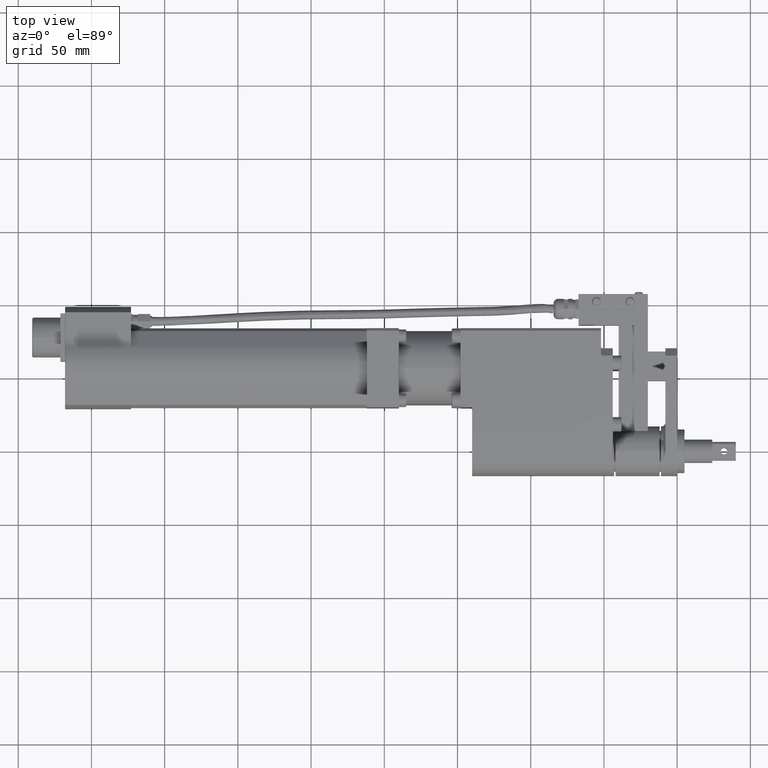
[diagram: clean part render]
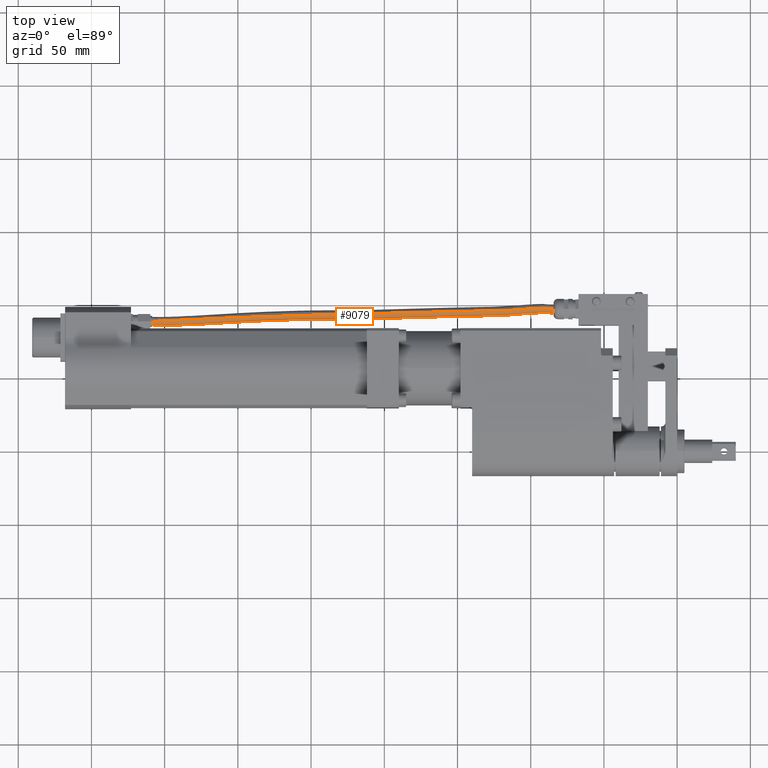
[diagram: same view with one face highlighted and labeled with its STEP entity id]
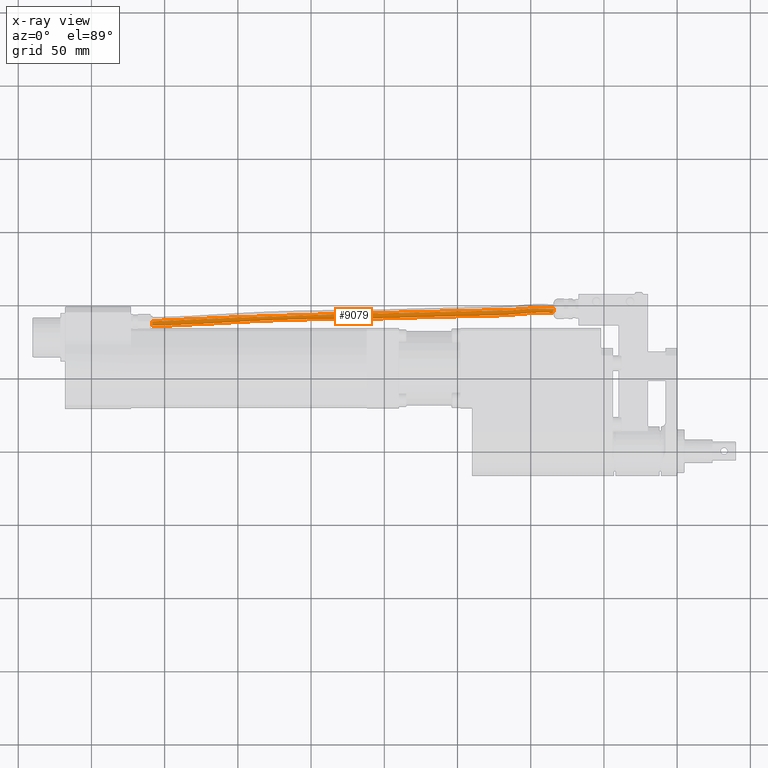
[diagram: x-ray of the same camera — body ghosted, the highlighted face saturated]
A machine part, top view. The second image highlights one B-rep face of the part: STEP entity #9079.
The next image is the same camera in x-ray: the body ghosted, the highlighted face saturated — about 0% of this face is hidden behind the body in this view.
In plain terms, the highlighted face is a freeform B-spline surface patch.
Its self-contained STEP definition (entity closure, byte-faithful):
#32 = CARTESIAN_POINT ( 'NONE',  ( -337.6372789821556900, 88.88968227986295300, -2.999999999999996400 ) ) ;
#170 = CARTESIAN_POINT ( 'NONE',  ( -312.1120021938616000, 90.75187374683132200, -2.999999999999996000 ) ) ;
#180 = EDGE_CURVE ( 'NONE', #5547, #9154, #2619, .T. ) ;
#201 = CARTESIAN_POINT ( 'NONE',  ( -94.54529776548345400, 98.30544597537202400, -2.999999999999996400 ) ) ;
#443 = DIRECTION ( 'NONE',  ( -0.1169190718949042900, -0.9931414454282099200, 0.0000000000000000000 ) ) ;
#636 = CARTESIAN_POINT ( 'NONE',  ( -279.1714916684698600, 92.37723864567809100, -2.999999999999996400 ) ) ;
#669 = CARTESIAN_POINT ( 'NONE',  ( -279.3861324880739400, 98.37351166050284200, -2.999999999999996000 ) ) ;
#702 = CARTESIAN_POINT ( 'NONE',  ( -279.3861324880739400, 98.37351166050284200, 3.000000000000003100 ) ) ;
#743 = CARTESIAN_POINT ( 'NONE',  ( -279.1714916684698600, 92.37723864567809100, 3.000000000000005300 ) ) ;
#782 = CARTESIAN_POINT ( 'NONE',  ( -278.9568508488657700, 86.38096563085329600, 3.000000000000005800 ) ) ;
#811 = CARTESIAN_POINT ( 'NONE',  ( -278.9568508488657700, 86.38096563085329600, -2.999999999999996000 ) ) ;
#855 = CARTESIAN_POINT ( 'NONE',  ( -279.1714916684698600, 92.37723864567809100, -2.999999999999996400 ) ) ;
#1370 = CARTESIAN_POINT ( 'NONE',  ( -312.1120021938616000, 90.75187374683132200, 3.000000000000005300 ) ) ;
#1473 = CARTESIAN_POINT ( 'NONE',  ( -224.9732553969826900, 93.25762852176600900, -2.999999999999996000 ) ) ;
#1509 = CARTESIAN_POINT ( 'NONE',  ( -225.0780242474189400, 99.25756351069597400, -2.999999999999995600 ) ) ;
#1564 = CARTESIAN_POINT ( 'NONE',  ( -225.0780242474189400, 99.25756351069597400, 3.000000000000003600 ) ) ;
#1599 = CARTESIAN_POINT ( 'NONE',  ( -224.9732553969826900, 93.25762852176600900, 3.000000000000004400 ) ) ;
#1632 = CARTESIAN_POINT ( 'NONE',  ( -224.8684865465464800, 87.25769353283607200, 3.000000000000005800 ) ) ;
#1676 = CARTESIAN_POINT ( 'NONE',  ( -224.8684865465464800, 87.25769353283607200, -2.999999999999995600 ) ) ;
#1714 = CARTESIAN_POINT ( 'NONE',  ( -224.9732553969826900, 93.25762852176600900, -2.999999999999996000 ) ) ;
#1862 = CARTESIAN_POINT ( 'NONE',  ( -358.3999999999999200, 88.71000000000000800, -2.999999999999996400 ) ) ;
#2129 = B_SPLINE_CURVE_WITH_KNOTS ( 'NONE', 3,
 ( #9828, #3885, #1370, #7320, #2217, #8155, #3060, #9019, #3936, #9870, #4777, #10720, #5635 ),
 .UNSPECIFIED., .F., .F.,
 ( 4, 1, 1, 1, 1, 1, 1, 1, 1, 1, 4 ),
 ( 0.0000000000000000000, 0.2270289307860099400, 0.2799999999999998000, 0.3608317495046968700, 0.5401302877822145000, 0.5599999999999999400, 0.7066666666666664400, 0.7812109671648893600, 0.8533333333333313900, 0.8895219977850782300, 1.000000000000000000 ),
 .UNSPECIFIED. ) ;
#2217 = CARTESIAN_POINT ( 'NONE',  ( -250.5716334594487800, 93.36711240785028600, 3.000000000000004900 ) ) ;
#2331 = CARTESIAN_POINT ( 'NONE',  ( -171.3620717769674700, 94.67965459027406900, -2.999999999999996900 ) ) ;
#2371 = CARTESIAN_POINT ( 'NONE',  ( -171.4316261424737600, 100.6763136923954100, -2.999999999999996000 ) ) ;
#2399 = CARTESIAN_POINT ( 'NONE',  ( -171.4316261424737600, 100.6763136923954100, 3.000000000000004000 ) ) ;
#2434 = CARTESIAN_POINT ( 'NONE',  ( -171.3620717769674700, 94.67965459027406900, 3.000000000000005300 ) ) ;
#2482 = CARTESIAN_POINT ( 'NONE',  ( -171.2925174114610100, 88.68299548815268500, 3.000000000000006700 ) ) ;
#2512 = CARTESIAN_POINT ( 'NONE',  ( -171.2925174114610100, 88.68299548815268500, -2.999999999999996000 ) ) ;
#2548 = CARTESIAN_POINT ( 'NONE',  ( -171.3620717769674700, 94.67965459027406900, -2.999999999999996900 ) ) ;
#2619 = B_SPLINE_CURVE_WITH_KNOTS ( 'NONE', 3,
 ( #1862, #6952, #170, #7799, #2693, #8652, #3562, #9510, #4419, #10370, #5263, #201, #6133 ),
 .UNSPECIFIED., .F., .F.,
 ( 4, 1, 1, 1, 1, 1, 1, 1, 1, 1, 4 ),
 ( 0.0000000000000000000, 0.2270289307860099400, 0.2799999999999998000, 0.3608317495046968700, 0.5401302877822145000, 0.5599999999999999400, 0.7066666666666664400, 0.7812109671648893600, 0.8533333333333313900, 0.8895219977850782300, 1.000000000000000000 ),
 .UNSPECIFIED. ) ;
#2656 = VERTEX_POINT ( 'NONE', #5176 ) ;
#2693 = CARTESIAN_POINT ( 'NONE',  ( -250.5716334594487800, 93.36711240785028600, -2.999999999999995600 ) ) ;
#2766 = DIRECTION ( 'NONE',  ( 1.000000000000000000, 0.0000000000000000000, 0.0000000000000000000 ) ) ;
#2873 = CARTESIAN_POINT ( 'NONE',  ( -358.3999999999999200, 88.71000000000000800, -2.999999999999996400 ) ) ;
#3060 = CARTESIAN_POINT ( 'NONE',  ( -193.3776078830578600, 93.87948260659382500, 3.000000000000005300 ) ) ;
#3158 = CARTESIAN_POINT ( 'NONE',  ( -127.8321871888082200, 95.46732863506856900, -2.999999999999997800 ) ) ;
#3198 = CARTESIAN_POINT ( 'NONE',  ( -128.0443054445173300, 101.4681659755125800, -2.999999999999996000 ) ) ;
#3250 = CARTESIAN_POINT ( 'NONE',  ( -128.0443054445173300, 101.4681659755125800, 3.000000000000004000 ) ) ;
#3291 = CARTESIAN_POINT ( 'NONE',  ( -127.8321871888082200, 95.46732863506856900, 3.000000000000007100 ) ) ;
#3323 = CARTESIAN_POINT ( 'NONE',  ( -127.6200689330992000, 89.46649129462446100, 3.000000000000006200 ) ) ;
#3359 = CARTESIAN_POINT ( 'NONE',  ( -127.6200689330992000, 89.46649129462446100, -2.999999999999996000 ) ) ;
#3406 = CARTESIAN_POINT ( 'NONE',  ( -127.8321871888082200, 95.46732863506856900, -2.999999999999997800 ) ) ;
#3562 = CARTESIAN_POINT ( 'NONE',  ( -193.3776078830578600, 93.87948260659382500, -2.999999999999996000 ) ) ;
#3672 = CIRCLE ( 'NONE', #6089, 3.000000000000000900 ) ;
#3885 = CARTESIAN_POINT ( 'NONE',  ( -337.6372789821556900, 88.88968227986295300, 3.000000000000005300 ) ) ;
#3936 = CARTESIAN_POINT ( 'NONE',  ( -144.5565897862414000, 95.35578089621159800, 3.000000000000005800 ) ) ;
#4032 = CARTESIAN_POINT ( 'NONE',  ( -94.54529776548345400, 98.30544597537202400, -2.999999999999996400 ) ) ;
#4083 = CARTESIAN_POINT ( 'NONE',  ( -94.11677713391705400, 104.2767418254009200, -2.999999999999995600 ) ) ;
#4118 = CARTESIAN_POINT ( 'NONE',  ( -94.11677713391705400, 104.2767418254009200, 3.000000000000004400 ) ) ;
#4155 = CARTESIAN_POINT ( 'NONE',  ( -94.54529776548345400, 98.30544597537202400, 3.000000000000004900 ) ) ;
#4195 = CARTESIAN_POINT ( 'NONE',  ( -94.97381839704992500, 92.33415012534317200, 3.000000000000006200 ) ) ;
#4235 = CARTESIAN_POINT ( 'NONE',  ( -94.97381839704992500, 92.33415012534317200, -2.999999999999995600 ) ) ;
#4265 = CARTESIAN_POINT ( 'NONE',  ( -94.54529776548345400, 98.30544597537202400, -2.999999999999996400 ) ) ;
#4419 = CARTESIAN_POINT ( 'NONE',  ( -144.5565897862414000, 95.35578089621159800, -2.999999999999996400 ) ) ;
#4764 = EDGE_CURVE ( 'NONE', #9372, #5547, #3672, .T. ) ;
#4777 = CARTESIAN_POINT ( 'NONE',  ( -107.8649417774172600, 96.42175498983840500, 3.000000000000005800 ) ) ;
#4883 = CARTESIAN_POINT ( 'NONE',  ( -358.3999999999999800, 94.71000000000000800, -2.999999999999996400 ) ) ;
#4920 = CARTESIAN_POINT ( 'NONE',  ( -358.3999999999999800, 94.71000000000000800, 3.000000000000004400 ) ) ;
#4958 = CARTESIAN_POINT ( 'NONE',  ( -358.3999999999999200, 88.71000000000000800, 3.000000000000005300 ) ) ;
#5002 = CARTESIAN_POINT ( 'NONE',  ( -358.3999999999999800, 82.71000000000000800, 3.000000000000006200 ) ) ;
#5037 = CARTESIAN_POINT ( 'NONE',  ( -358.3999999999999800, 82.71000000000000800, -2.999999999999996400 ) ) ;
#5071 = CARTESIAN_POINT ( 'NONE',  ( -358.3999999999999200, 88.71000000000000800, -2.999999999999996400 ) ) ;
#5176 = CARTESIAN_POINT ( 'NONE',  ( -84.40000000000002000, 97.20000000000000300, 3.000000000000005300 ) ) ;
#5255 = CARTESIAN_POINT ( 'NONE',  ( -84.40000000000002000, 97.20000000000000300, -2.999999999999996400 ) ) ;
#5257 = FACE_OUTER_BOUND ( 'NONE', #5832, .T. ) ;
#5263 = CARTESIAN_POINT ( 'NONE',  ( -107.8649417774172600, 96.42175498983840500, -2.999999999999996400 ) ) ;
#5453 = CIRCLE ( 'NONE', #6167, 3.000000000000003600 ) ;
#5517 = DIRECTION ( 'NONE',  ( -0.9931414454282100300, 0.1169190718949045700, -0.0000000000000000000 ) ) ;
#5547 = VERTEX_POINT ( 'NONE', #2873 ) ;
#5635 = CARTESIAN_POINT ( 'NONE',  ( -84.40000000000002000, 97.20000000000000300, 3.000000000000005300 ) ) ;
#5665 = CARTESIAN_POINT ( 'NONE',  ( -358.3999999999999200, 88.71000000000000800, -2.999999999999996400 ) ) ;
#5687 = CARTESIAN_POINT ( 'NONE',  ( -358.3999999999999200, 88.71000000000000800, 3.000000000000005300 ) ) ;
#5698 = CARTESIAN_POINT ( 'NONE',  ( -312.1120021938616000, 90.75187374683132200, -2.999999999999996400 ) ) ;
#5735 = CARTESIAN_POINT ( 'NONE',  ( -312.3003747382754800, 96.74802387275364900, -2.999999999999996400 ) ) ;
#5783 = CARTESIAN_POINT ( 'NONE',  ( -312.3003747382754800, 96.74802387275364900, 3.000000000000004000 ) ) ;
#5822 = CARTESIAN_POINT ( 'NONE',  ( -312.1120021938616000, 90.75187374683132200, 3.000000000000005300 ) ) ;
#5832 = EDGE_LOOP ( 'NONE', ( #10043, #10898, #8484, #6188 ) ) ;
#5854 = CARTESIAN_POINT ( 'NONE',  ( -311.9236296494476100, 84.75572362090896700, 3.000000000000006700 ) ) ;
#5889 = CARTESIAN_POINT ( 'NONE',  ( -311.9236296494476100, 84.75572362090896700, -2.999999999999996400 ) ) ;
#5940 = CARTESIAN_POINT ( 'NONE',  ( -312.1120021938616000, 90.75187374683132200, -2.999999999999996400 ) ) ;
#6089 = AXIS2_PLACEMENT_3D ( 'NONE', #7864, #2766, #8731 ) ;
#6133 = CARTESIAN_POINT ( 'NONE',  ( -84.40000000000002000, 97.20000000000000300, -2.999999999999996400 ) ) ;
#6167 = AXIS2_PLACEMENT_3D ( 'NONE', #10611, #5517, #443 ) ;
#6188 = ORIENTED_EDGE ( 'NONE', *, *, #8344, .T. ) ;
#6568 = CARTESIAN_POINT ( 'NONE',  ( -250.5716334594487800, 93.36711240785028600, -2.999999999999996000 ) ) ;
#6613 = CARTESIAN_POINT ( 'NONE',  ( -250.7539441973737600, 99.36495604594608700, -2.999999999999996000 ) ) ;
#6648 = CARTESIAN_POINT ( 'NONE',  ( -250.7539441973737600, 99.36495604594608700, 3.000000000000003100 ) ) ;
#6681 = CARTESIAN_POINT ( 'NONE',  ( -250.5716334594487800, 93.36711240785028600, 3.000000000000004900 ) ) ;
#6723 = CARTESIAN_POINT ( 'NONE',  ( -250.3893227215238800, 87.36926876975449800, 3.000000000000005800 ) ) ;
#6765 = CARTESIAN_POINT ( 'NONE',  ( -250.3893227215238800, 87.36926876975449800, -2.999999999999996000 ) ) ;
#6799 = CARTESIAN_POINT ( 'NONE',  ( -250.5716334594487800, 93.36711240785028600, -2.999999999999996000 ) ) ;
#6952 = CARTESIAN_POINT ( 'NONE',  ( -337.6372789821556900, 88.88968227986295300, -2.999999999999996400 ) ) ;
#7262 =( BOUNDED_SURFACE ( )  B_SPLINE_SURFACE ( 3, 3, ( 
 ( #5665, #9942, #5698, #636, #6568, #1473, #7420, #2331, #8257, #3158, #9124, #4032, #9979 ),
 ( #4883, #10824, #5735, #669, #6613, #1509, #7457, #2371, #8304, #3198, #9160, #4083, #10015 ),
 ( #4920, #10864, #5783, #702, #6648, #1564, #7495, #2399, #8345, #3250, #9190, #4118, #10068 ),
 ( #4958, #10893, #5822, #743, #6681, #1599, #7537, #2434, #8379, #3291, #9237, #4155, #10101 ),
 ( #5002, #10925, #5854, #782, #6723, #1632, #7573, #2482, #8410, #3323, #9277, #4195, #10132 ),
 ( #5037, #10967, #5889, #811, #6765, #1676, #7606, #2512, #8459, #3359, #9306, #4235, #10177 ),
 ( #5071, #32, #5940, #855, #6799, #1714, #7642, #2548, #8491, #3406, #9343, #4265, #10214 ) ),
 .UNSPECIFIED., .T., .F., .F. ) 
 B_SPLINE_SURFACE_WITH_KNOTS ( ( 4, 3, 4 ),
 ( 4, 1, 1, 1, 1, 1, 1, 1, 1, 1, 4 ),
 ( 0.0000000000000000000, 0.5000000000000000000, 1.000000000000000000 ),
 ( 0.0000000000000000000, 0.2270289307860099400, 0.2799999999999998000, 0.3608317495046968700, 0.5401302877822145000, 0.5599999999999999400, 0.7066666666666664400, 0.7812109671648893600, 0.8533333333333313900, 0.8895219977850782300, 1.000000000000000000 ),
 .UNSPECIFIED. ) 
 GEOMETRIC_REPRESENTATION_ITEM ( )  RATIONAL_B_SPLINE_SURFACE ( (
 ( 1.000000000000000000, 1.000000000000000000, 1.000000000000000200, 1.000000000000000200, 1.000000000000000200, 1.000000000000000200, 1.000000000000000200, 1.000000000000000200, 1.000000000000000000, 0.9999999999999998900, 0.9999999999999997800, 1.000000000000000000, 1.000000000000000000),
 ( 0.3333333333333333700, 0.3333333333333333700, 0.3333333333333334300, 0.3333333333333334800, 0.3333333333333334300, 0.3333333333333333700, 0.3333333333333334300, 0.3333333333333334800, 0.3333333333333333700, 0.3333333333333333100, 0.3333333333333333100, 0.3333333333333333700, 0.3333333333333333700),
 ( 0.3333333333333333700, 0.3333333333333333700, 0.3333333333333334300, 0.3333333333333334800, 0.3333333333333334300, 0.3333333333333333700, 0.3333333333333334300, 0.3333333333333334800, 0.3333333333333333700, 0.3333333333333333100, 0.3333333333333333100, 0.3333333333333333700, 0.3333333333333333700),
 ( 1.000000000000000000, 1.000000000000000000, 1.000000000000000200, 1.000000000000000200, 1.000000000000000200, 1.000000000000000200, 1.000000000000000200, 1.000000000000000200, 1.000000000000000000, 0.9999999999999998900, 0.9999999999999997800, 1.000000000000000000, 1.000000000000000000),
 ( 0.3333333333333333700, 0.3333333333333333700, 0.3333333333333334300, 0.3333333333333334800, 0.3333333333333334300, 0.3333333333333333700, 0.3333333333333334300, 0.3333333333333334800, 0.3333333333333333700, 0.3333333333333333100, 0.3333333333333333100, 0.3333333333333333700, 0.3333333333333333700),
 ( 0.3333333333333333700, 0.3333333333333333700, 0.3333333333333334300, 0.3333333333333334800, 0.3333333333333334300, 0.3333333333333333700, 0.3333333333333334300, 0.3333333333333334800, 0.3333333333333333700, 0.3333333333333333100, 0.3333333333333333100, 0.3333333333333333700, 0.3333333333333333700),
 ( 1.000000000000000000, 1.000000000000000000, 1.000000000000000200, 1.000000000000000200, 1.000000000000000200, 1.000000000000000200, 1.000000000000000200, 1.000000000000000200, 1.000000000000000000, 0.9999999999999998900, 0.9999999999999997800, 1.000000000000000000, 1.000000000000000000) ) ) 
 REPRESENTATION_ITEM ( '' )  SURFACE ( )  );
#7320 = CARTESIAN_POINT ( 'NONE',  ( -279.1714916684699100, 92.37723864567809100, 3.000000000000005300 ) ) ;
#7420 = CARTESIAN_POINT ( 'NONE',  ( -193.3776078830578600, 93.87948260659383900, -2.999999999999996400 ) ) ;
#7457 = CARTESIAN_POINT ( 'NONE',  ( -193.4396412287749200, 99.87875161419921700, -2.999999999999996000 ) ) ;
#7495 = CARTESIAN_POINT ( 'NONE',  ( -193.4396412287749200, 99.87875161419921700, 3.000000000000004000 ) ) ;
#7537 = CARTESIAN_POINT ( 'NONE',  ( -193.3776078830578600, 93.87948260659383900, 3.000000000000005300 ) ) ;
#7573 = CARTESIAN_POINT ( 'NONE',  ( -193.3155745373406900, 87.88021359898846200, 3.000000000000005800 ) ) ;
#7606 = CARTESIAN_POINT ( 'NONE',  ( -193.3155745373406900, 87.88021359898846200, -2.999999999999996000 ) ) ;
#7642 = CARTESIAN_POINT ( 'NONE',  ( -193.3776078830578600, 93.87948260659383900, -2.999999999999996400 ) ) ;
#7799 = CARTESIAN_POINT ( 'NONE',  ( -279.1714916684699100, 92.37723864567809100, -2.999999999999996000 ) ) ;
#7864 = CARTESIAN_POINT ( 'NONE',  ( -358.3999999999999200, 88.71000000000000800, 4.336808689942017700E-015 ) ) ;
#8155 = CARTESIAN_POINT ( 'NONE',  ( -224.9732553969826900, 93.25762852176600900, 3.000000000000004400 ) ) ;
#8257 = CARTESIAN_POINT ( 'NONE',  ( -144.5565897862414000, 95.35578089621159800, -2.999999999999996400 ) ) ;
#8304 = CARTESIAN_POINT ( 'NONE',  ( -144.7862240500072900, 101.3579655580499400, -2.999999999999996900 ) ) ;
#8344 = EDGE_CURVE ( 'NONE', #9154, #2656, #5453, .T. ) ;
#8345 = CARTESIAN_POINT ( 'NONE',  ( -144.7862240500072900, 101.3579655580499400, 3.000000000000004900 ) ) ;
#8379 = CARTESIAN_POINT ( 'NONE',  ( -144.5565897862414000, 95.35578089621159800, 3.000000000000005800 ) ) ;
#8410 = CARTESIAN_POINT ( 'NONE',  ( -144.3269555224755400, 89.35359623437327100, 3.000000000000006200 ) ) ;
#8459 = CARTESIAN_POINT ( 'NONE',  ( -144.3269555224755400, 89.35359623437327100, -2.999999999999996900 ) ) ;
#8484 = ORIENTED_EDGE ( 'NONE', *, *, #180, .T. ) ;
#8491 = CARTESIAN_POINT ( 'NONE',  ( -144.5565897862414000, 95.35578089621159800, -2.999999999999996400 ) ) ;
#8599 = EDGE_CURVE ( 'NONE', #9372, #2656, #2129, .T. ) ;
#8652 = CARTESIAN_POINT ( 'NONE',  ( -224.9732553969826900, 93.25762852176600900, -2.999999999999995600 ) ) ;
#8731 = DIRECTION ( 'NONE',  ( 0.0000000000000000000, 0.0000000000000000000, -1.000000000000000000 ) ) ;
#9019 = CARTESIAN_POINT ( 'NONE',  ( -171.3620717769674700, 94.67965459027405500, 3.000000000000005300 ) ) ;
#9079 = ADVANCED_FACE ( 'NONE', ( #5257 ), #7262, .T. ) ;
#9124 = CARTESIAN_POINT ( 'NONE',  ( -107.8649417774172600, 96.42175498983840500, -2.999999999999996000 ) ) ;
#9154 = VERTEX_POINT ( 'NONE', #5255 ) ;
#9160 = CARTESIAN_POINT ( 'NONE',  ( -107.7988380056333900, 102.4095752699873400, -2.999999999999996000 ) ) ;
#9190 = CARTESIAN_POINT ( 'NONE',  ( -107.7988380056333900, 102.4095752699873400, 3.000000000000004000 ) ) ;
#9237 = CARTESIAN_POINT ( 'NONE',  ( -107.8649417774172600, 96.42175498983840500, 3.000000000000005800 ) ) ;
#9277 = CARTESIAN_POINT ( 'NONE',  ( -107.9310455492011900, 90.43393470968943900, 3.000000000000005300 ) ) ;
#9306 = CARTESIAN_POINT ( 'NONE',  ( -107.9310455492011900, 90.43393470968943900, -2.999999999999996000 ) ) ;
#9343 = CARTESIAN_POINT ( 'NONE',  ( -107.8649417774172600, 96.42175498983840500, -2.999999999999996000 ) ) ;
#9372 = VERTEX_POINT ( 'NONE', #5687 ) ;
#9510 = CARTESIAN_POINT ( 'NONE',  ( -171.3620717769674700, 94.67965459027405500, -2.999999999999996400 ) ) ;
#9828 = CARTESIAN_POINT ( 'NONE',  ( -358.3999999999999200, 88.71000000000000800, 3.000000000000005300 ) ) ;
#9870 = CARTESIAN_POINT ( 'NONE',  ( -127.8321871888082300, 95.46732863506855400, 3.000000000000006700 ) ) ;
#9942 = CARTESIAN_POINT ( 'NONE',  ( -337.6372789821556900, 88.88968227986295300, -2.999999999999996400 ) ) ;
#9979 = CARTESIAN_POINT ( 'NONE',  ( -84.40000000000002000, 97.20000000000000300, -2.999999999999996400 ) ) ;
#10015 = CARTESIAN_POINT ( 'NONE',  ( -83.69848556863058800, 103.1588486725692800, -2.999999999999996400 ) ) ;
#10043 = ORIENTED_EDGE ( 'NONE', *, *, #8599, .F. ) ;
#10068 = CARTESIAN_POINT ( 'NONE',  ( -83.69848556863058800, 103.1588486725692800, 3.000000000000004400 ) ) ;
#10101 = CARTESIAN_POINT ( 'NONE',  ( -84.40000000000002000, 97.20000000000000300, 3.000000000000005300 ) ) ;
#10132 = CARTESIAN_POINT ( 'NONE',  ( -85.10151443136952300, 91.24115132743075700, 3.000000000000006200 ) ) ;
#10177 = CARTESIAN_POINT ( 'NONE',  ( -85.10151443136952300, 91.24115132743075700, -2.999999999999996400 ) ) ;
#10214 = CARTESIAN_POINT ( 'NONE',  ( -84.40000000000002000, 97.20000000000000300, -2.999999999999996400 ) ) ;
#10370 = CARTESIAN_POINT ( 'NONE',  ( -127.8321871888082300, 95.46732863506855400, -2.999999999999997300 ) ) ;
#10611 = CARTESIAN_POINT ( 'NONE',  ( -84.40000000000002000, 97.20000000000000300, 4.336808689942017700E-015 ) ) ;
#10720 = CARTESIAN_POINT ( 'NONE',  ( -94.54529776548345400, 98.30544597537202400, 3.000000000000004900 ) ) ;
#10824 = CARTESIAN_POINT ( 'NONE',  ( -337.7216252881572700, 94.88795844766632100, -2.999999999999996400 ) ) ;
#10864 = CARTESIAN_POINT ( 'NONE',  ( -337.7216252881572700, 94.88795844766632100, 3.000000000000003600 ) ) ;
#10893 = CARTESIAN_POINT ( 'NONE',  ( -337.6372789821556900, 88.88968227986295300, 3.000000000000005300 ) ) ;
#10898 = ORIENTED_EDGE ( 'NONE', *, *, #4764, .T. ) ;
#10925 = CARTESIAN_POINT ( 'NONE',  ( -337.5529326761541100, 82.89140611205957000, 3.000000000000006200 ) ) ;
#10967 = CARTESIAN_POINT ( 'NONE',  ( -337.5529326761541100, 82.89140611205957000, -2.999999999999996400 ) ) ;